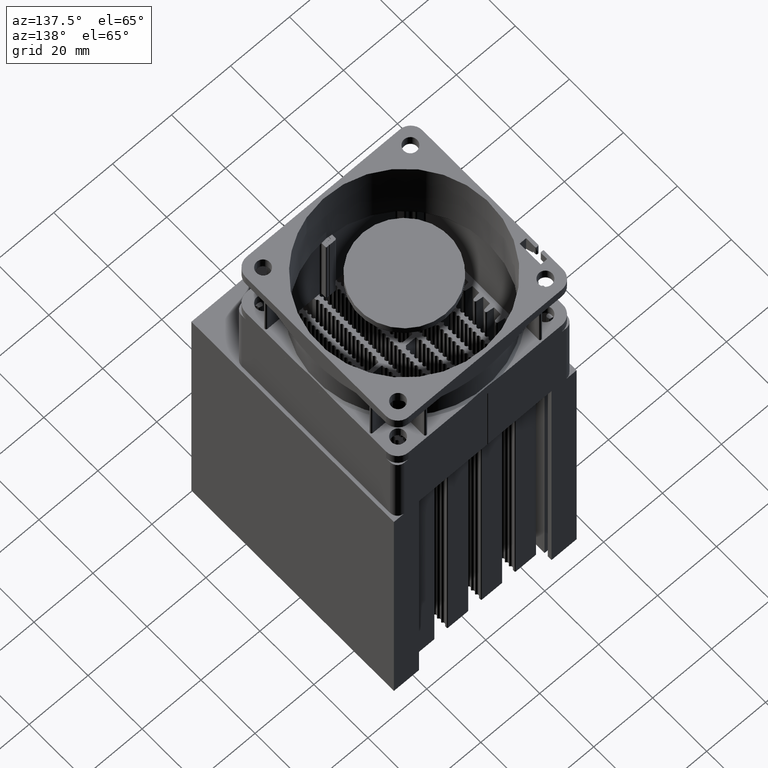
[diagram: clean part render]
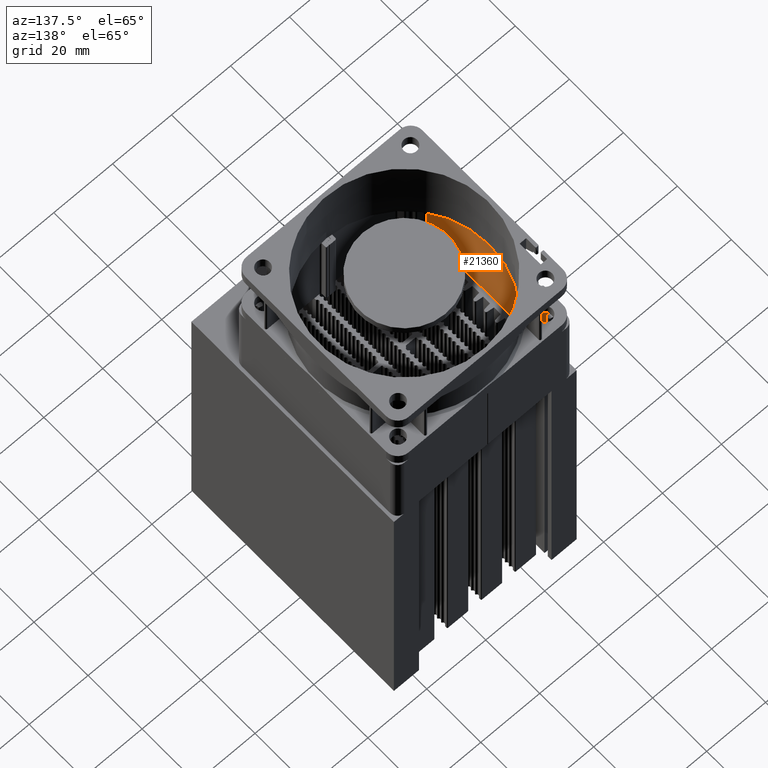
[diagram: same view with one face highlighted and labeled with its STEP entity id]
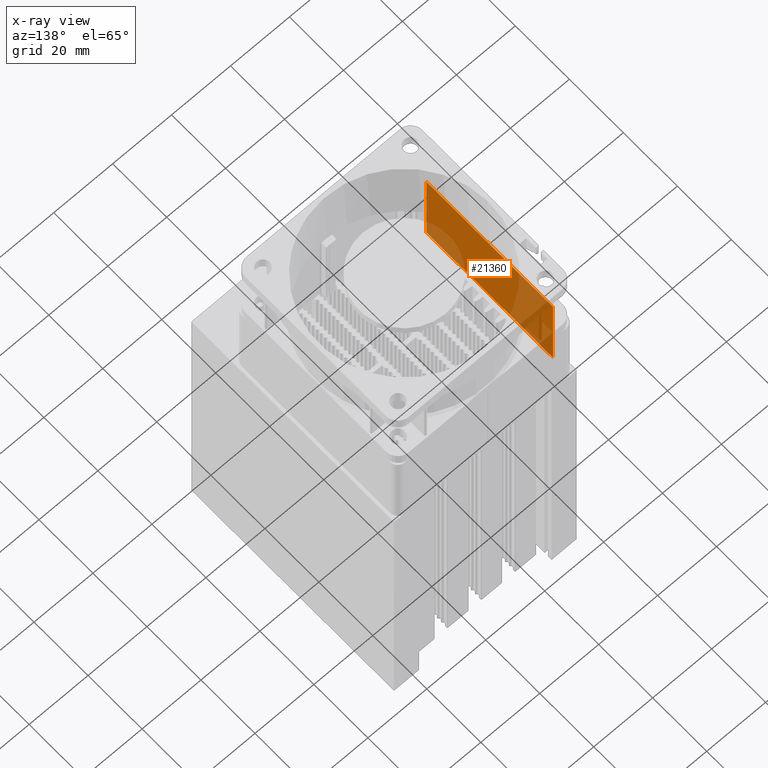
[diagram: x-ray of the same camera — body ghosted, the highlighted face saturated]
A machine part, auxiliary view. The second image highlights one B-rep face of the part: STEP entity #21360.
The next image is the same camera in x-ray: the body ghosted, the highlighted face saturated — about 36% of this face is hidden behind the body in this view.
In plain terms, the highlighted planar face has unit normal (-1, -0, -0).
Its self-contained STEP definition (entity closure, byte-faithful):
#397 = CARTESIAN_POINT ( 'NONE',  ( -23.44537815126048841, 14.36974789915965545, 0.000000000000000000 ) ) ;
#1364 = VECTOR ( 'NONE', #17828, 1000.000000000000000 ) ;
#1787 = VECTOR ( 'NONE', #30245, 1000.000000000000000 ) ;
#1859 = EDGE_LOOP ( 'NONE', ( #22440, #15863, #22903, #9714 ) ) ;
#2044 = CARTESIAN_POINT ( 'NONE',  ( -23.44537815126048841, 14.36974789915965545, 30.00000000000000000 ) ) ;
#3149 = LINE ( 'NONE', #8000, #1364 ) ;
#4354 = EDGE_CURVE ( 'NONE', #25025, #21150, #16957, .T. ) ;
#8000 = CARTESIAN_POINT ( 'NONE',  ( 23.44537815126050262, 14.36974789915966255, 30.00000000000000000 ) ) ;
#8289 = EDGE_CURVE ( 'NONE', #25025, #15801, #16570, .T. ) ;
#9056 = CARTESIAN_POINT ( 'NONE',  ( -23.44537815126048841, 14.36974789915965545, 30.00000000000000000 ) ) ;
#9714 = ORIENTED_EDGE ( 'NONE', *, *, #8289, .T. ) ;
#11113 = VERTEX_POINT ( 'NONE', #13392 ) ;
#12576 = CARTESIAN_POINT ( 'NONE',  ( -23.44537815126048841, 14.36974789915965545, 30.00000000000000000 ) ) ;
#13392 = CARTESIAN_POINT ( 'NONE',  ( 23.44537815126050262, 14.36974789915966255, 0.000000000000000000 ) ) ;
#14332 = DIRECTION ( 'NONE',  ( -3.363116314379565451E-44, -1.567082167785079599E-30, 1.000000000000000000 ) ) ;
#15619 = CARTESIAN_POINT ( 'NONE',  ( 23.44537815126050262, 14.36974789915966255, 30.00000000000000000 ) ) ;
#15801 = VERTEX_POINT ( 'NONE', #397 ) ;
#15863 = ORIENTED_EDGE ( 'NONE', *, *, #24460, .F. ) ;
#16570 = LINE ( 'NONE', #2044, #19897 ) ;
#16957 = LINE ( 'NONE', #9056, #26317 ) ;
#17828 = DIRECTION ( 'NONE',  ( 3.363116314379565451E-44, 1.567082167785079599E-30, -1.000000000000000000 ) ) ;
#18345 = AXIS2_PLACEMENT_3D ( 'NONE', #19653, #31588, #14332 ) ;
#18363 = PLANE ( 'NONE',  #18345 ) ;
#18884 = DIRECTION ( 'NONE',  ( 1.000000000000000000, -9.466330862652141665E-30, -3.363116314379560970E-44 ) ) ;
#19482 = DIRECTION ( 'NONE',  ( 3.363116314379565451E-44, 1.567082167785079599E-30, -1.000000000000000000 ) ) ;
#19653 = CARTESIAN_POINT ( 'NONE',  ( -23.44537815126048841, 14.36974789915965545, 30.00000000000000000 ) ) ;
#19897 = VECTOR ( 'NONE', #19482, 1000.000000000000000 ) ;
#21150 = VERTEX_POINT ( 'NONE', #15619 ) ;
#21360 = ADVANCED_FACE ( 'NONE', ( #30608 ), #18363, .F. ) ;
#22440 = ORIENTED_EDGE ( 'NONE', *, *, #30853, .T. ) ;
#22668 = CARTESIAN_POINT ( 'NONE',  ( -23.44537815126048841, 14.36974789915965545, 0.000000000000000000 ) ) ;
#22903 = ORIENTED_EDGE ( 'NONE', *, *, #4354, .F. ) ;
#24460 = EDGE_CURVE ( 'NONE', #21150, #11113, #3149, .T. ) ;
#25025 = VERTEX_POINT ( 'NONE', #12576 ) ;
#26317 = VECTOR ( 'NONE', #18884, 1000.000000000000000 ) ;
#30245 = DIRECTION ( 'NONE',  ( 1.000000000000000000, -9.466330862652141665E-30, -3.363116314379560970E-44 ) ) ;
#30542 = LINE ( 'NONE', #22668, #1787 ) ;
#30608 = FACE_OUTER_BOUND ( 'NONE', #1859, .T. ) ;
#30853 = EDGE_CURVE ( 'NONE', #15801, #11113, #30542, .T. ) ;
#31588 = DIRECTION ( 'NONE',  ( -9.466330862652141665E-30, 1.000000000000000000, 1.567082167785079599E-30 ) ) ;